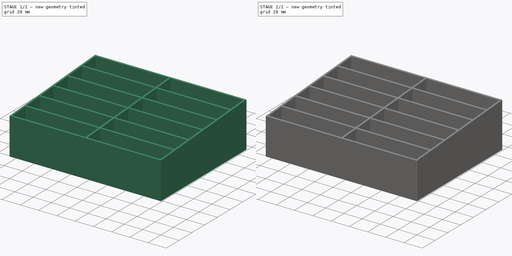
[diagram: build sequence overview — one tinted view per stage of 2, left to right]
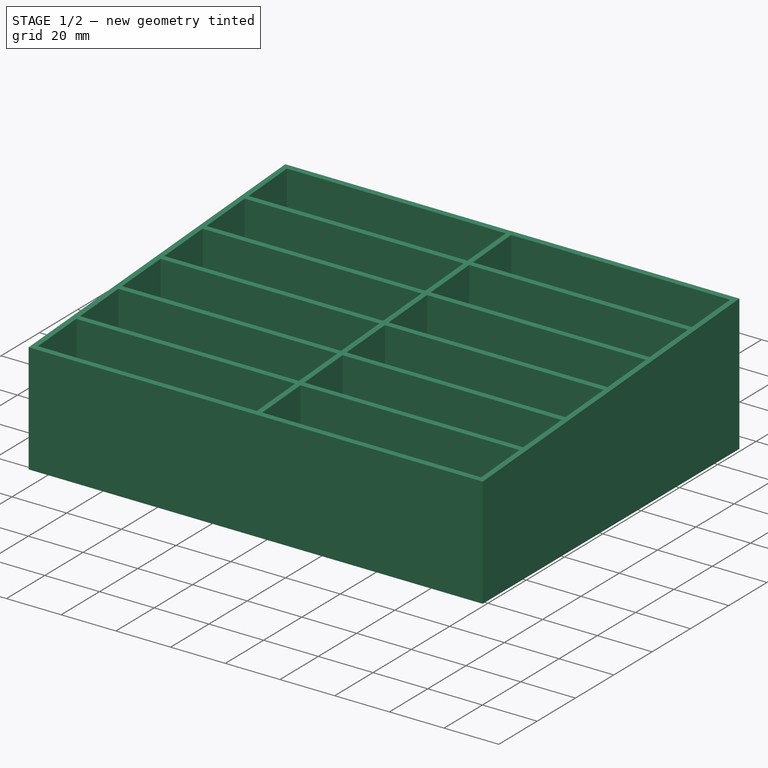
[diagram: stage 1 of 2 — iso view after this stage's code; geometry added in this stage tinted green]
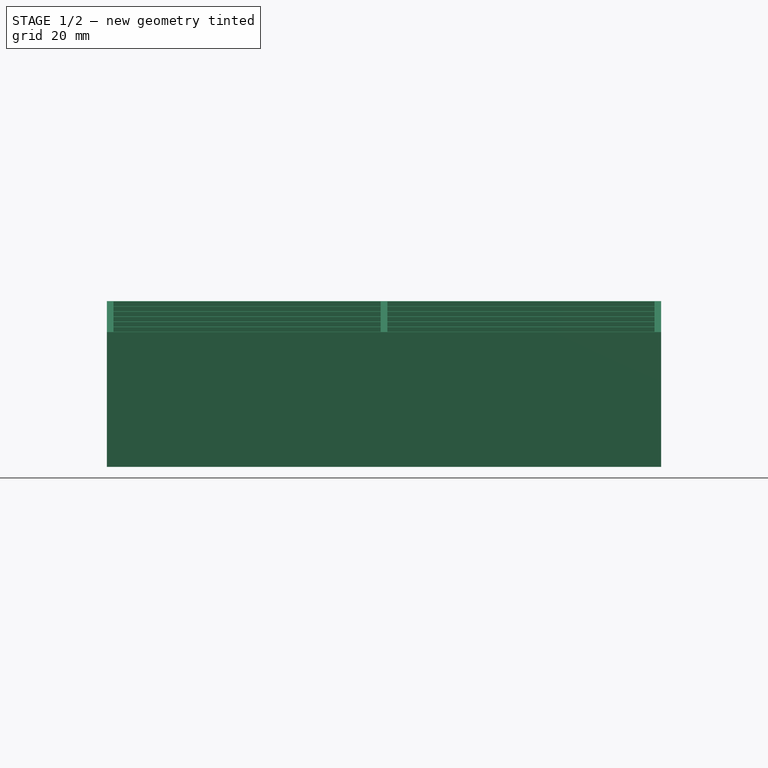
[diagram: stage 1 of 2 — front view after this stage's code; geometry added in this stage tinted green]
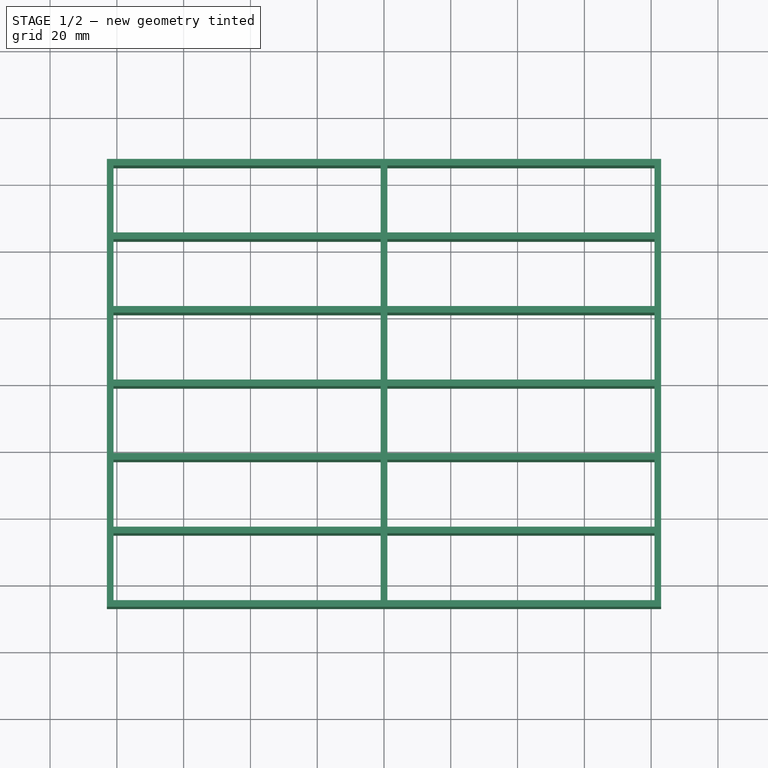
[diagram: stage 1 of 2 — top view after this stage's code; geometry added in this stage tinted green]
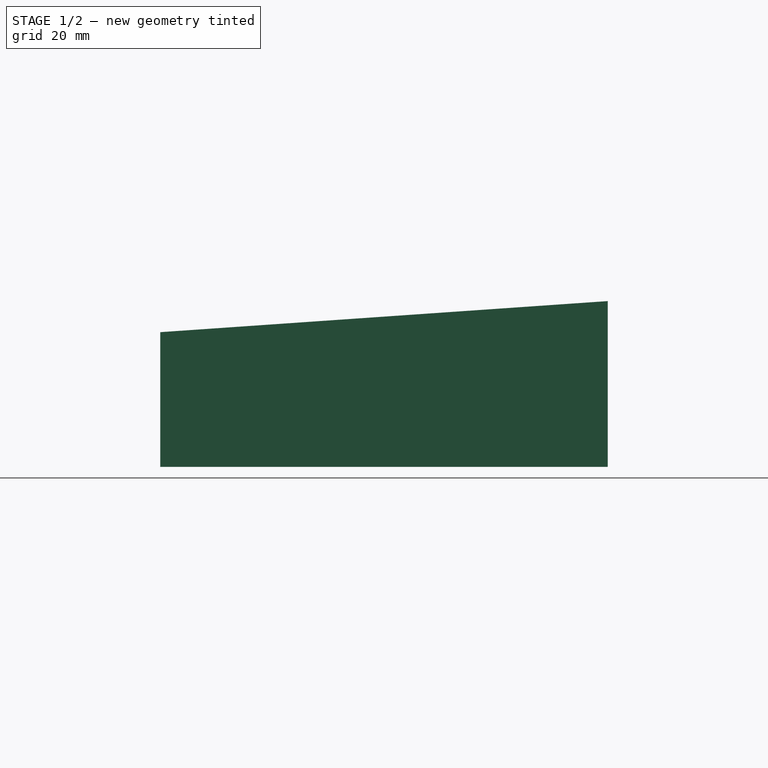
[diagram: stage 1 of 2 — right view after this stage's code; geometry added in this stage tinted green]
FCSTD DOCUMENT  (FreeCAD 0.20R)
Label: porte portable2
License: All rights reserved
LicenseURL: http://en.wikipedia.org/wiki/All_rights_reserved
objects: Sketcher::SketchObject×3, PartDesign::Pad×2, PartDesign::Pocket×1, PartDesign::Fillet×1, PartDesign::Body×1
note: 12 computed .brp shape members not serialized (recipe doc carries the construction recipe); baked Part::Feature solids carry a one-line shape summary decoded from their .brp

FEATURE [Sketcher::SketchObject] Sketch
  FullyConstrained = true
  MapMode = 5
  Support = -> [XY_Plane]
  sketch-geometry (52):
    g0: LineSegment StartX=-83 StartY=67 StartZ=0 EndX=83 EndY=67 EndZ=0
    g1: LineSegment StartX=83 StartY=67 StartZ=0 EndX=83 EndY=-67 EndZ=0
    g2: LineSegment StartX=83 StartY=-67 StartZ=0 EndX=-83 EndY=-67 EndZ=0
    g3: LineSegment StartX=-83 StartY=-67 StartZ=0 EndX=-83 EndY=67 EndZ=0
    g4: LineSegment StartX=-81 StartY=-65 StartZ=0 EndX=-1 EndY=-65 EndZ=0
    g5: LineSegment StartX=-1 StartY=-65 StartZ=0 EndX=-1 EndY=-45 EndZ=0
    g6: LineSegment StartX=-1 StartY=-45 StartZ=0 EndX=-81 EndY=-45 EndZ=0
    g7: LineSegment StartX=-81 StartY=-45 StartZ=0 EndX=-81 EndY=-65 EndZ=0
    g8: LineSegment StartX=-1 StartY=-43 StartZ=0 EndX=-81 EndY=-43 EndZ=0
    g9: LineSegment StartX=-81 StartY=-43 StartZ=0 EndX=-81 EndY=-23 EndZ=0
    g10: LineSegment StartX=-81 StartY=-23 StartZ=0 EndX=-1 EndY=-23 EndZ=0
    g11: LineSegment StartX=-1 StartY=-23 StartZ=0 EndX=-1 EndY=-43 EndZ=0
    g12: LineSegment StartX=-1 StartY=-21 StartZ=0 EndX=-81 EndY=-21 EndZ=0
    g13: LineSegment StartX=-81 StartY=-21 StartZ=0 EndX=-81 EndY=-1 EndZ=0
    g14: LineSegment StartX=-81 StartY=-1 StartZ=0 EndX=-1 EndY=-1 EndZ=0
    g15: LineSegment StartX=-1 StartY=-1 StartZ=0 EndX=-1 EndY=-21 EndZ=0
    g16: LineSegment StartX=-1 StartY=1 StartZ=0 EndX=-81 EndY=1 EndZ=0
    g17: LineSegment StartX=-81 StartY=1 StartZ=0 EndX=-81 EndY=21 EndZ=0
    g18: LineSegment StartX=-81 StartY=21 StartZ=0 EndX=-1 EndY=21 EndZ=0
    g19: LineSegment StartX=-1 StartY=21 StartZ=0 EndX=-1 EndY=1 EndZ=0
    g20: LineSegment StartX=-1 StartY=23 StartZ=0 EndX=-81 EndY=23 EndZ=0
    g21: LineSegment StartX=-81 StartY=23 StartZ=0 EndX=-81 EndY=43 EndZ=0
    g22: LineSegment StartX=-81 StartY=43 StartZ=0 EndX=-1 EndY=43 EndZ=0
    g23: LineSegment StartX=-1 StartY=43 StartZ=0 EndX=-1 EndY=23 EndZ=0
    g24: LineSegment StartX=-1 StartY=45 StartZ=0 EndX=-81 EndY=45 EndZ=0
    g25: LineSegment StartX=-81 StartY=45 StartZ=0 EndX=-81 EndY=65 EndZ=0
    g26: LineSegment StartX=-81 StartY=65 StartZ=0 EndX=-1 EndY=65 EndZ=0
    g27: LineSegment StartX=-1 StartY=65 StartZ=0 EndX=-1 EndY=45 EndZ=0
    g28: LineSegment StartX=1 StartY=65 StartZ=0 EndX=81 EndY=65 EndZ=0
    g29: LineSegment StartX=81 StartY=65 StartZ=0 EndX=81 EndY=45 EndZ=0
    g30: LineSegment StartX=81 StartY=45 StartZ=0 EndX=1 EndY=45 EndZ=0
    g31: LineSegment StartX=1 StartY=45 StartZ=0 EndX=1 EndY=65 EndZ=0
    g32: LineSegment StartX=1 StartY=43 StartZ=0 EndX=81 EndY=43 EndZ=0
    g33: LineSegment StartX=81 StartY=43 StartZ=0 EndX=81 EndY=23 EndZ=0
    g34: LineSegment StartX=81 StartY=23 StartZ=0 EndX=1 EndY=23 EndZ=0
    g35: LineSegment StartX=1 StartY=23 StartZ=0 EndX=1 EndY=43 EndZ=0
    g36: LineSegment StartX=1 StartY=21 StartZ=0 EndX=81 EndY=21 EndZ=0
    g37: LineSegment StartX=81 StartY=21 StartZ=0 EndX=81 EndY=1 EndZ=0
    g38: LineSegment StartX=81 StartY=1 StartZ=0 EndX=1 EndY=1 EndZ=0
    g39: LineSegment StartX=1 StartY=1 StartZ=0 EndX=1 EndY=21 EndZ=0
    g40: LineSegment StartX=1 StartY=-1 StartZ=0 EndX=81 EndY=-1 EndZ=0
    g41: LineSegment StartX=81 StartY=-1 StartZ=0 EndX=81 EndY=-21 EndZ=0
    g42: LineSegment StartX=81 StartY=-21 StartZ=0 EndX=1 EndY=-21 EndZ=0
    g43: LineSegment StartX=1 StartY=-21 StartZ=0 EndX=1 EndY=-1 EndZ=0
    g44: LineSegment StartX=1 StartY=-23 StartZ=0 EndX=81 EndY=-23 EndZ=0
    g45: LineSegment StartX=81 StartY=-23 StartZ=0 EndX=81 EndY=-43 EndZ=0
    g46: LineSegment StartX=81 StartY=-43 StartZ=0 EndX=1 EndY=-43 EndZ=0
    g47: LineSegment StartX=1 StartY=-43 StartZ=0 EndX=1 EndY=-23 EndZ=0
    g48: LineSegment StartX=1 StartY=-45 StartZ=0 EndX=81 EndY=-45 EndZ=0
    g49: LineSegment StartX=81 StartY=-45 StartZ=0 EndX=81 EndY=-65 EndZ=0
    g50: LineSegment StartX=81 StartY=-65 StartZ=0 EndX=1 EndY=-65 EndZ=0
    g51: LineSegment StartX=1 StartY=-65 StartZ=0 EndX=1 EndY=-45 EndZ=0
  constraints (155):
    c: Coincident(g0,g1)
    c: Coincident(g1,g2)
    c: Coincident(g2,g3)
    c: Coincident(g3,g0)
    c: Horizontal(g0)
    c: Horizontal(g2)
    c: Vertical(g1)
    c: Vertical(g3)
    c: DistanceY(g1,g1) = 134
    c: DistanceX(g0,g0) = 166
    c: Symmetric(g0,g1,g-1)
    c: Coincident(g4,g5)
    c: Coincident(g5,g6)
    c: Coincident(g6,g7)
    c: Coincident(g7,g4)
    c: Horizontal(g4)
    c: Horizontal(g6)
    c: Vertical(g5)
    c: Vertical(g7)
    c: DistanceX(g6,g6) = 80
    c: DistanceY(g5,g5) = 20
    c: DistanceX(g2,g4) = 2
    c: DistanceY(g2,g4) = 2
    c: Coincident(g8,g9)
    c: Coincident(g9,g10)
    c: Coincident(g10,g11)
    c: Coincident(g11,g8)
    c: Horizontal(g8)
    c: Horizontal(g10)
    c: Vertical(g9)
    c: Vertical(g11)
    c: Coincident(g12,g13)
    c: Coincident(g13,g14)
    c: Coincident(g14,g15)
    c: Coincident(g15,g12)
    c: Horizontal(g12)
    c: Horizontal(g14)
    c: Vertical(g13)
    c: Vertical(g15)
    c: Coincident(g16,g17)
    c: Coincident(g17,g18)
    c: Coincident(g18,g19)
    c: Coincident(g19,g16)
    c: Horizontal(g16)
    c: Horizontal(g18)
    c: Vertical(g17)
    c: Vertical(g19)
    c: Coincident(g20,g21)
    c: Coincident(g21,g22)
    c: Coincident(g22,g23)
    c: Coincident(g23,g20)
    c: Horizontal(g20)
    c: Horizontal(g22)
    c: Vertical(g21)
    c: Vertical(g23)
    c: Coincident(g24,g25)
    c: Coincident(g25,g26)
    c: Coincident(g26,g27)
    c: Coincident(g27,g24)
    c: Horizontal(g24)
    c: Horizontal(g26)
    c: Vertical(g25)
    c: Vertical(g27)
    c: Vertical(g9,g12)
    c: Vertical(g12,g16)
    c: Vertical(g16,g20)
    c: Vertical(g20,g24)
    c: Vertical(g24,g6)
    c: Vertical(g16,g20)
    c: Vertical(g20,g12)
    c: Vertical(g12,g8)
    c: Vertical(g8,g24)
    c: Vertical(g8,g5)
    c: Equal(g5,g11)
    c: Equal(g11,g15)
    c: Equal(g15,g19)
    c: Equal(g19,g23)
    c: Equal(g23,g27)
    c: DistanceY(g6,g8) = 2
    c: DistanceY(g9,g12) = 2
    c: DistanceY(g13,g16) = 2
    c: DistanceY(g17,g20) = 2
    c: DistanceY(g21,g24) = 2
    c: Coincident(g28,g29)
    c: Coincident(g29,g30)
    c: Coincident(g30,g31)
    c: Coincident(g31,g28)
    c: Horizontal(g28)
    c: Horizontal(g30)
    c: Vertical(g29)
    c: Vertical(g31)
    c: Horizontal(g28,g26)
    c: DistanceX(g26,g28) = 2
    c: DistanceX(g28,g0) = 2
    c: Horizontal(g30,g24)
    c: Coincident(g32,g33)
    c: Coincident(g33,g34)
    c: Coincident(g34,g35)
    c: Coincident(g35,g32)
    c: Horizontal(g32)
    c: Horizontal(g34)
    c: Vertical(g33)
    c: Vertical(g35)
    c: Horizontal(g32,g22)
    c: DistanceX(g22,g32) = 2
    c: Coincident(g36,g37)
    c: Coincident(g37,g38)
    c: Coincident(g38,g39)
    c: Coincident(g39,g36)
    c: Horizontal(g36)
    c: Horizontal(g38)
    c: Vertical(g37)
    c: Vertical(g39)
    c: Coincident(g40,g41)
    c: Coincident(g41,g42)
    c: Coincident(g42,g43)
    c: Coincident(g43,g40)
    c: Horizontal(g40)
    c: Horizontal(g42)
    c: Vertical(g41)
    c: Vertical(g43)
    c: Coincident(g44,g45)
    c: Coincident(g45,g46)
    c: Coincident(g46,g47)
    c: Coincident(g47,g44)
    c: Horizontal(g44)
    c: Horizontal(g46)
    c: Vertical(g45)
    c: Vertical(g47)
    c: Coincident(g48,g49)
    c: Coincident(g49,g50)
    c: Coincident(g50,g51)
    c: Coincident(g51,g48)
    c: Horizontal(g48)
    c: Horizontal(g50)
    c: Vertical(g49)
    c: Vertical(g51)
    c: Vertical(g46,g48)
    c: Vertical(g48,g42)
    c: Vertical(g42,g38)
    c: Vertical(g38,g34)
    c: Vertical(g33,g36)
    c: Vertical(g36,g40)
    c: Vertical(g40,g44)
    c: Vertical(g48,g45)
    c: Vertical(g45,g29)
    c: Equal(g29,g33)
    c: Equal(g33,g37)
    c: Equal(g37,g41)
    c: Equal(g41,g45)
    c: Equal(g45,g49)
    c: Horizontal(g36,g18)
    c: Horizontal(g40,g14)
    c: Horizontal(g44,g10)
    c: Horizontal(g48,g5)
FEATURE [PartDesign::Pad] Pad
  Direction = (0,0,1)
  Length = 50
  Length2 = 10
  Profile = -> Sketch
  ReferenceAxis = -> Sketch [N_Axis]
  Type = 0
FEATURE [Sketcher::SketchObject] Sketch001
  ExternalGeometry = -> [Pad]
  FullyConstrained = true
  MapMode = 5
  Placement = pos=(83,0,0) rot=(0.57735,0.57735,0.57735;2.0944rad)
  Support = -> [Pad]
  sketch-geometry (4):
    g0: LineSegment StartX=-72 StartY=40 StartZ=0 EndX=72 EndY=50 EndZ=0
    g1: LineSegment StartX=72 StartY=50 StartZ=0 EndX=72 EndY=60 EndZ=0
    g2: LineSegment StartX=72 StartY=60 StartZ=0 EndX=-72 EndY=60 EndZ=0
    g3: LineSegment StartX=-72 StartY=60 StartZ=0 EndX=-72 EndY=40 EndZ=0
  constraints (12):
    c: Horizontal(g0,g-4)
    c: DistanceX(g-4,g0) = 5
    c: DistanceX(g0,g-3) = 5
    c: DistanceY(g0,g-3) = 10
    c: Coincident(g1,g0)
    c: Vertical(g1)
    c: Coincident(g2,g1)
    c: Horizontal(g2)
    c: Coincident(g3,g2)
    c: Coincident(g3,g0)
    c: Vertical(g3)
    c: DistanceY(g1,g1) = 10
FEATURE [PartDesign::Pocket] Pocket
  BaseFeature = -> Pad
  Direction = (-1,0,0)
  Length = 5
  Length2 = 5
  Profile = -> Sketch001
  ReferenceAxis = -> Sketch001 [N_Axis]
  Type = 1
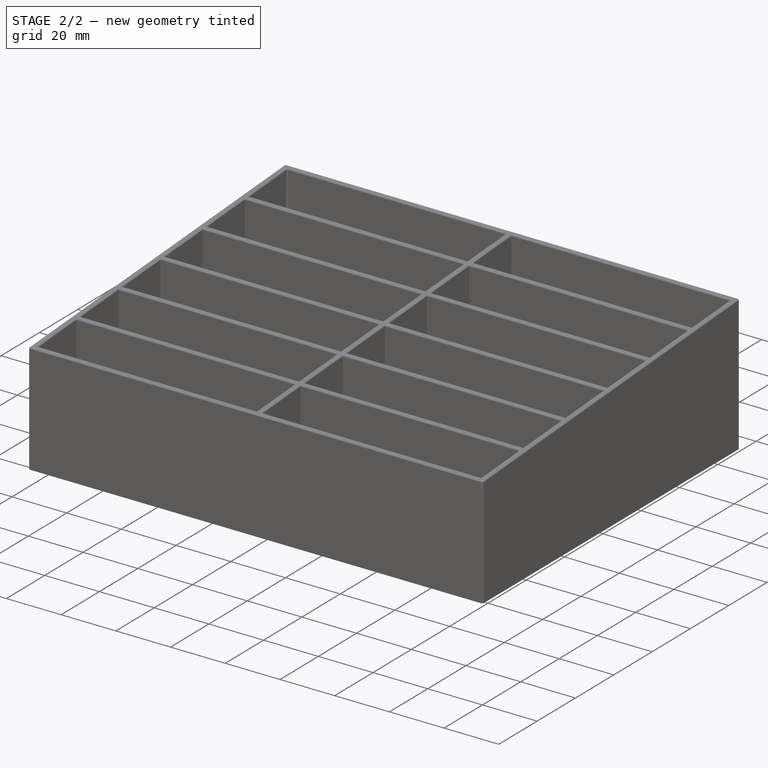
[diagram: stage 2 of 2 — iso view after this stage's code; geometry added in this stage tinted green]
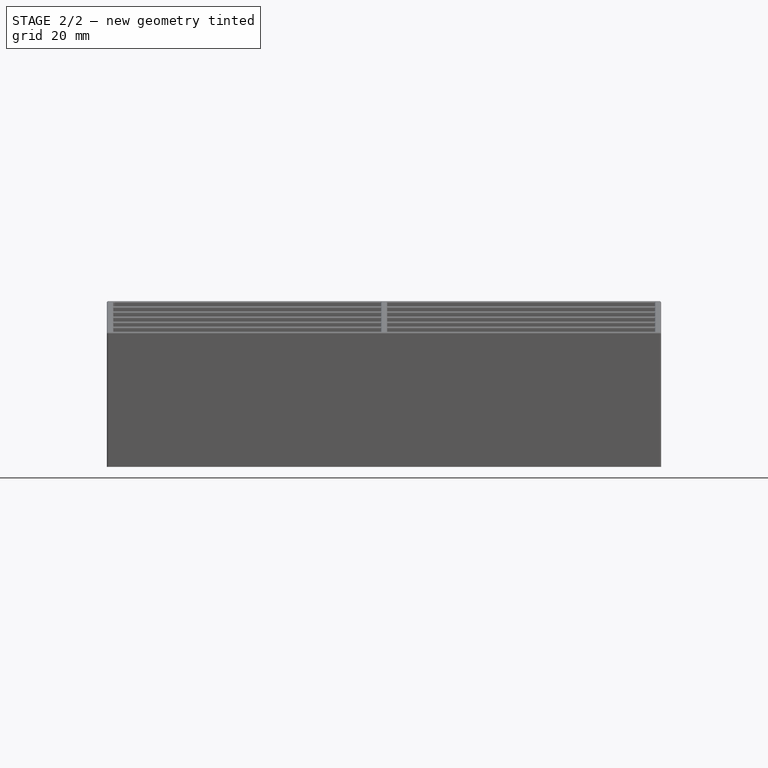
[diagram: stage 2 of 2 — front view after this stage's code; geometry added in this stage tinted green]
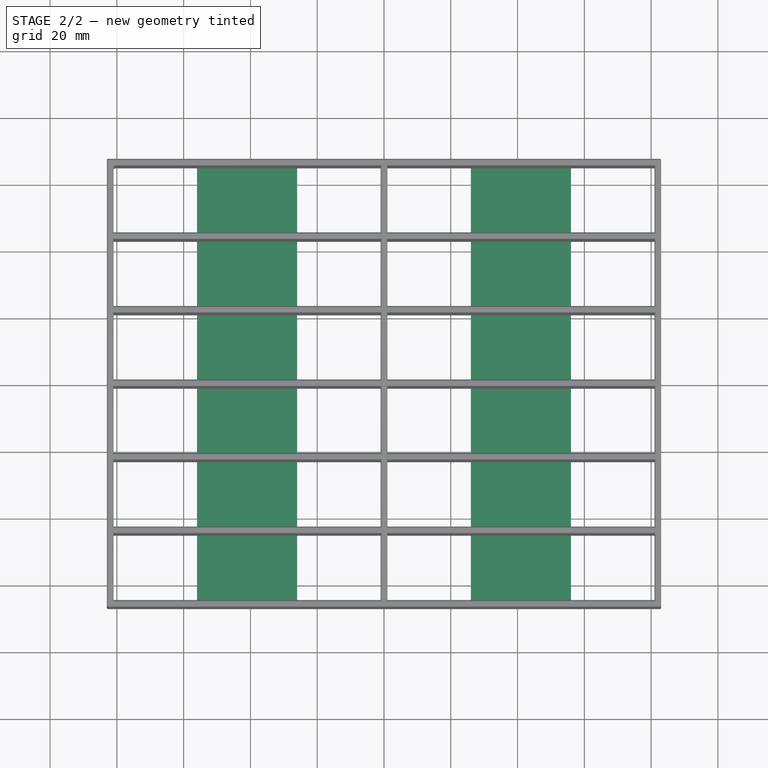
[diagram: stage 2 of 2 — top view after this stage's code; geometry added in this stage tinted green]
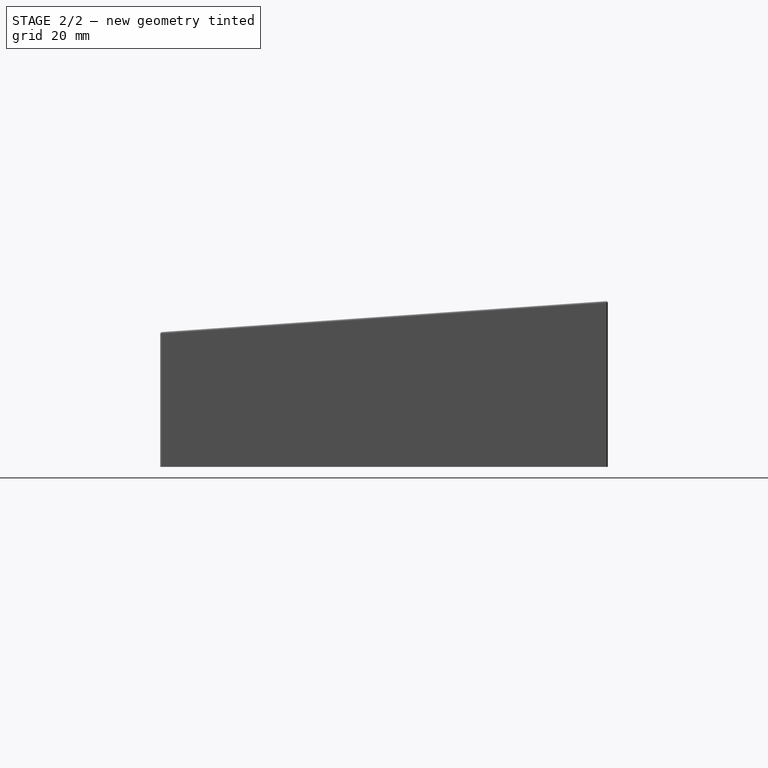
[diagram: stage 2 of 2 — right view after this stage's code; geometry added in this stage tinted green]
FEATURE [Sketcher::SketchObject] Sketch002
  ExternalGeometry = -> [Pocket]
  FullyConstrained = true
  MapMode = 5
  Placement = pos=(0,0,0) rot=(1,0,0;3.14159rad)
  Support = -> [Pocket]
  sketch-geometry (8):
    g0: LineSegment StartX=-56 StartY=65 StartZ=0 EndX=-26 EndY=65 EndZ=0
    g1: LineSegment StartX=-26 StartY=65 StartZ=0 EndX=-26 EndY=-65 EndZ=0
    g2: LineSegment StartX=-26 StartY=-65 StartZ=0 EndX=-56 EndY=-65 EndZ=0
    g3: LineSegment StartX=-56 StartY=-65 StartZ=0 EndX=-56 EndY=65 EndZ=0
    g4: LineSegment StartX=26 StartY=-65 StartZ=0 EndX=56 EndY=-65 EndZ=0
    g5: LineSegment StartX=56 StartY=-65 StartZ=0 EndX=56 EndY=65 EndZ=0
    g6: LineSegment StartX=56 StartY=65 StartZ=0 EndX=26 EndY=65 EndZ=0
    g7: LineSegment StartX=26 StartY=65 StartZ=0 EndX=26 EndY=-65 EndZ=0
  constraints (24):
    c: Coincident(g0,g1)
    c: Coincident(g1,g2)
    c: Coincident(g2,g3)
    c: Coincident(g3,g0)
    c: Horizontal(g0)
    c: Horizontal(g2)
    c: Vertical(g1)
    c: Vertical(g3)
    c: PointOnObject(g1,g-5)
    c: Coincident(g4,g5)
    c: Coincident(g5,g6)
    c: Coincident(g6,g7)
    c: Coincident(g7,g4)
    c: Horizontal(g4)
    c: Horizontal(g6)
    c: Vertical(g5)
    c: Vertical(g7)
    c: PointOnObject(g4,g-6)
    c: Horizontal(g5,g-3)
    c: Horizontal(g0,g-4)
    c: DistanceX(g-4,g0) = 25
    c: DistanceX(g0,g-7) = 25
    c: DistanceX(g-6,g4) = 25
    c: DistanceX(g4,g-6) = 25
FEATURE [PartDesign::Pad] Pad001
  BaseFeature = -> Pocket
  Direction = (0,0,-1)
  Length = 2
  Length2 = 10
  Profile = -> Sketch002
  ReferenceAxis = -> Sketch002 [N_Axis]
  Reversed = true
  Type = 0
FEATURE [PartDesign::Fillet] Fillet
  Base = -> Pad001 [Face4,Edge156,Edge2,Edge162,Edge104]
  BaseFeature = -> Pad001
  Radius = 0.5
  SupportTransform = false
  UseAllEdges = false
FEATURE [PartDesign::Body] Body
  Group = -> [Sketch,Pad,Sketch001,Pocket,Sketch002,Pad001,Fillet]
  Origin = -> Origin
  Tip = -> Fillet
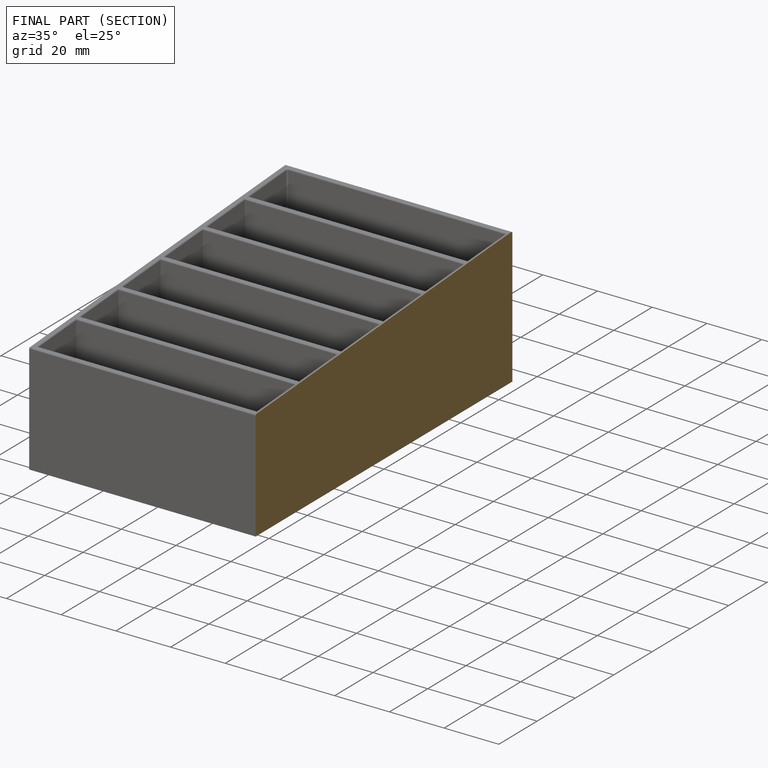
[diagram: finished part — half-section view (interior)]
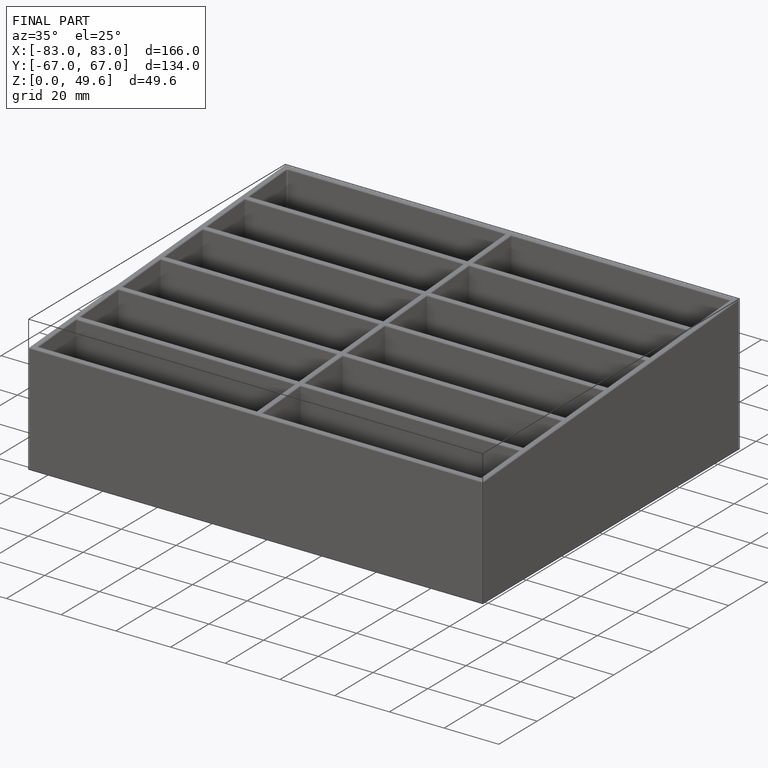
[diagram: finished part — iso view with bounding-box wireframe]
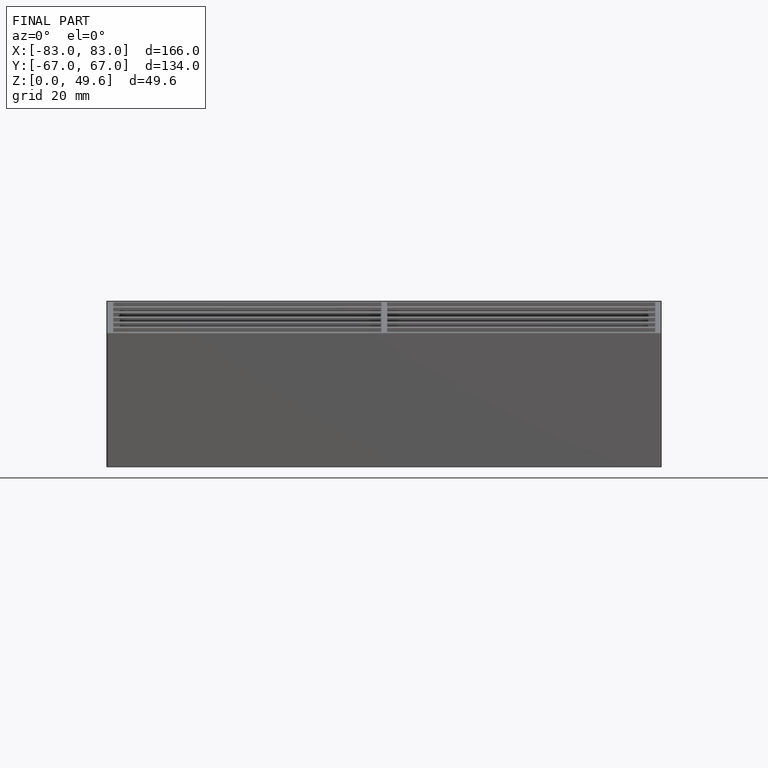
[diagram: finished part — front view with bounding-box wireframe]
